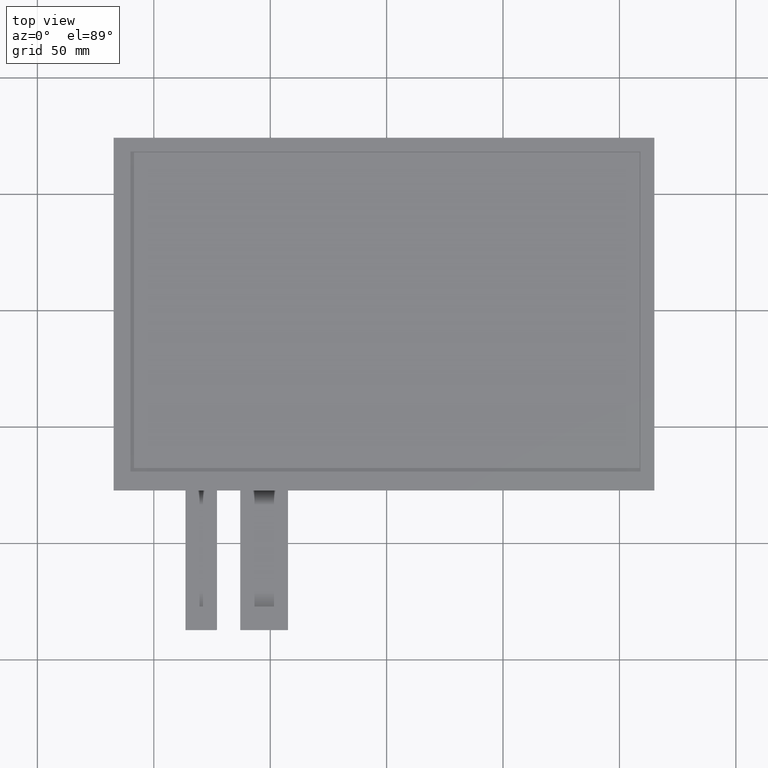
[diagram: clean part render]
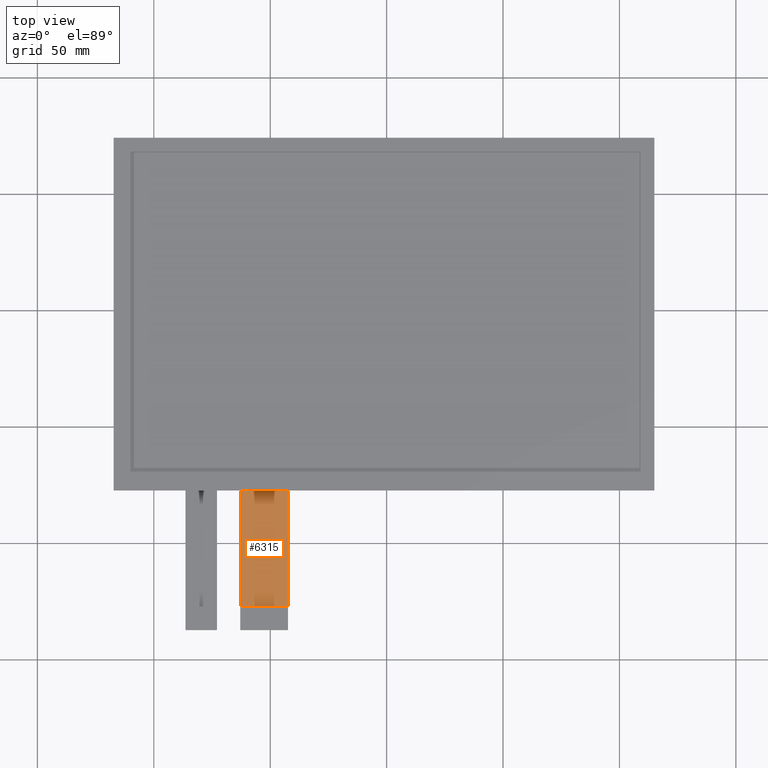
[diagram: same view with one face highlighted and labeled with its STEP entity id]
A machine part, top view. The second image highlights one B-rep face of the part: STEP entity #6315.
In plain terms, the highlighted planar face has unit normal (0, 0, 1).
Its self-contained STEP definition (entity closure, byte-faithful):
#377=PLANE('',#6645);
#679=FACE_OUTER_BOUND('',#981,.T.);
#981=EDGE_LOOP('',(#5926,#5927,#5928,#5929));
#1829=LINE('',#9835,#2709);
#1832=LINE('',#9841,#2712);
#1842=LINE('',#9860,#2722);
#1843=LINE('',#9862,#2723);
#2709=VECTOR('',#8059,10.);
#2712=VECTOR('',#8064,10.);
#2722=VECTOR('',#8082,10.);
#2723=VECTOR('',#8085,10.);
#3331=VERTEX_POINT('',#9832);
#3332=VERTEX_POINT('',#9834);
#3334=VERTEX_POINT('',#9840);
#3339=VERTEX_POINT('',#9858);
#4197=EDGE_CURVE('',#3332,#3331,#1829,.T.);
#4200=EDGE_CURVE('',#3331,#3334,#1832,.T.);
#4210=EDGE_CURVE('',#3334,#3339,#1842,.T.);
#4211=EDGE_CURVE('',#3332,#3339,#1843,.T.);
#5926=ORIENTED_EDGE('',*,*,#4200,.T.);
#5927=ORIENTED_EDGE('',*,*,#4210,.T.);
#5928=ORIENTED_EDGE('',*,*,#4211,.F.);
#5929=ORIENTED_EDGE('',*,*,#4197,.T.);
#6315=ADVANCED_FACE('',(#679),#377,.T.);
#6645=AXIS2_PLACEMENT_3D('',#9861,#8083,#8084);
#8059=DIRECTION('',(2.96059473233375E-16,-1.,0.));
#8064=DIRECTION('',(1.,0.,0.));
#8082=DIRECTION('',(8.88178419700125E-16,1.,0.));
#8083=DIRECTION('center_axis',(0.,0.,1.));
#8084=DIRECTION('ref_axis',(1.,0.,0.));
#8085=DIRECTION('',(1.,1.14702335733981E-16,0.));
#9832=CARTESIAN_POINT('',(-62.88,-127.31,-1.1));
#9834=CARTESIAN_POINT('',(-62.88,-77.31,-1.1));
#9835=CARTESIAN_POINT('',(-62.88,-77.31,-1.1));
#9840=CARTESIAN_POINT('',(-42.38,-127.31,-1.1));
#9841=CARTESIAN_POINT('',(-47.505,-127.31,-1.1));
#9858=CARTESIAN_POINT('',(-42.3799999999999,-77.31,-1.1));
#9860=CARTESIAN_POINT('',(-42.38,-137.31,-1.1));
#9861=CARTESIAN_POINT('Origin',(-52.63,-107.31,-1.1));
#9862=CARTESIAN_POINT('',(31.195,-77.31,-1.1));